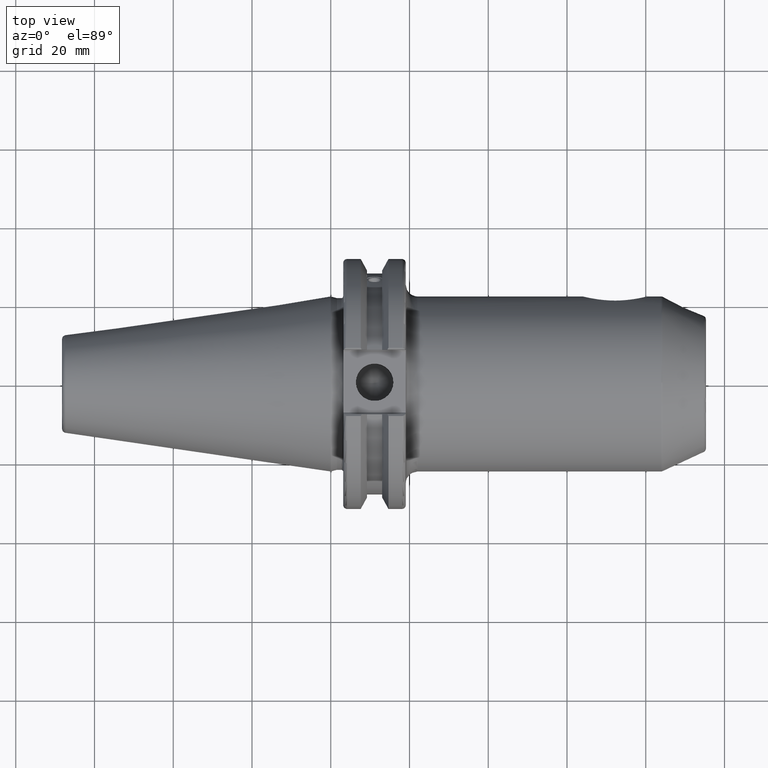
[diagram: clean part render]
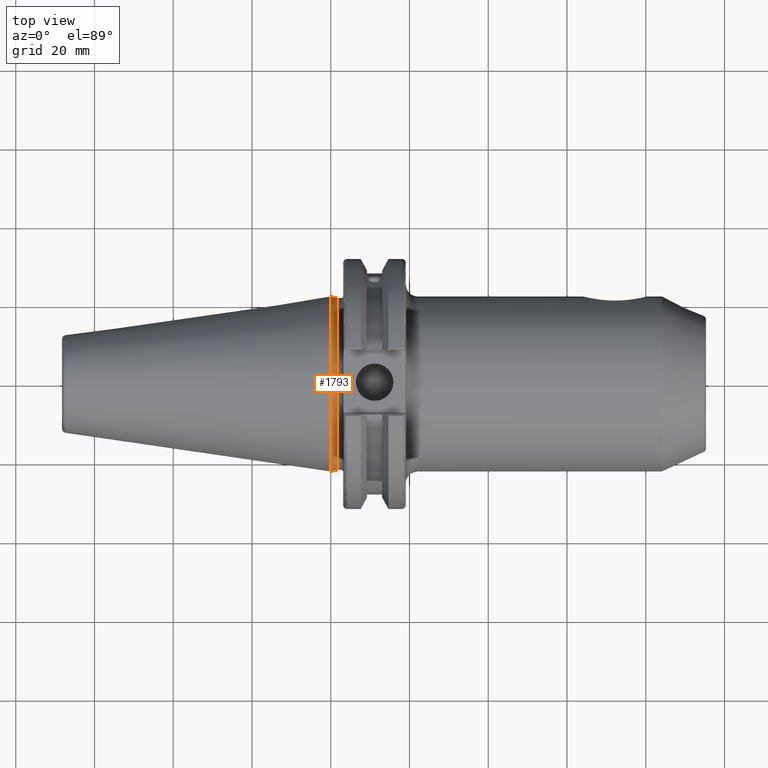
[diagram: same view with one face highlighted and labeled with its STEP entity id]
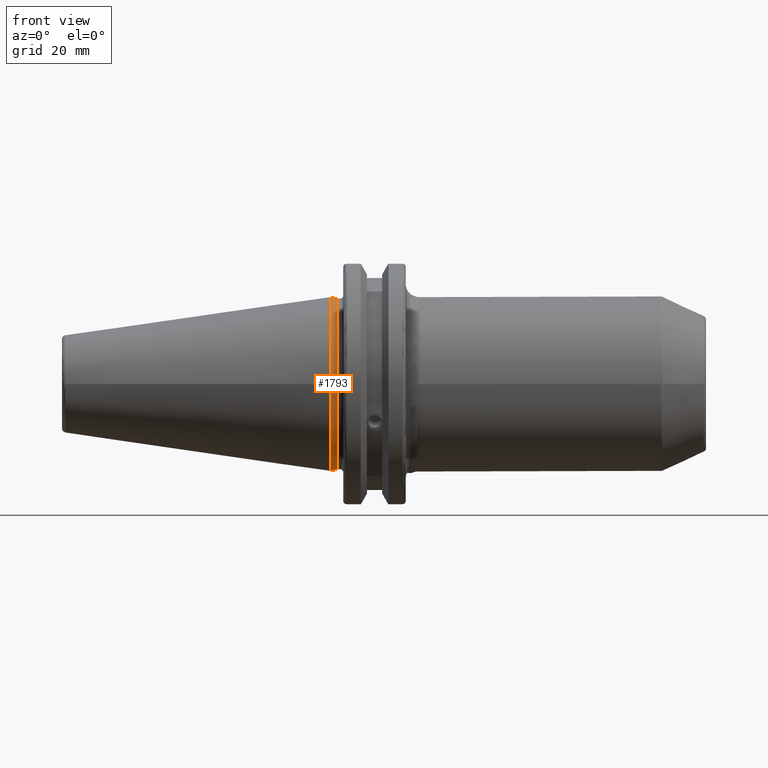
[diagram: same view with one face highlighted and labeled with its STEP entity id]
A machine part, top view. The second image highlights one B-rep face of the part: STEP entity #1793.
A second angle (front view) of the same face is appended — the face is thin or edge-on in the first view.
In plain terms, the highlighted conical surface has half-angle 15 deg.
Its self-contained STEP definition (entity closure, byte-faithful):
#69=CONICAL_SURFACE('',#2030,22.0125,0.261799387799148);
#214=FACE_OUTER_BOUND('',#321,.T.);
#321=EDGE_LOOP('',(#1661,#1662,#1663,#1664,#1665,#1666));
#454=LINE('',#3538,#544);
#544=VECTOR('',#2555,22.0125);
#624=CIRCLE('',#1958,21.8);
#625=CIRCLE('',#1959,21.8);
#639=CIRCLE('',#1989,22.225);
#640=CIRCLE('',#1990,22.225);
#801=VERTEX_POINT('',#3243);
#802=VERTEX_POINT('',#3245);
#835=VERTEX_POINT('',#3455);
#836=VERTEX_POINT('',#3456);
#1035=EDGE_CURVE('',#801,#802,#624,.T.);
#1036=EDGE_CURVE('',#802,#801,#625,.T.);
#1088=EDGE_CURVE('',#835,#836,#639,.T.);
#1089=EDGE_CURVE('',#836,#835,#640,.T.);
#1125=EDGE_CURVE('',#801,#836,#454,.T.);
#1661=ORIENTED_EDGE('',*,*,#1036,.F.);
#1662=ORIENTED_EDGE('',*,*,#1035,.F.);
#1663=ORIENTED_EDGE('',*,*,#1125,.T.);
#1664=ORIENTED_EDGE('',*,*,#1089,.T.);
#1665=ORIENTED_EDGE('',*,*,#1088,.T.);
#1666=ORIENTED_EDGE('',*,*,#1125,.F.);
#1793=ADVANCED_FACE('',(#214),#69,.T.);
#1958=AXIS2_PLACEMENT_3D('',#3246,#2374,#2375);
#1959=AXIS2_PLACEMENT_3D('',#3247,#2376,#2377);
#1989=AXIS2_PLACEMENT_3D('',#3457,#2452,#2453);
#1990=AXIS2_PLACEMENT_3D('',#3458,#2454,#2455);
#2030=AXIS2_PLACEMENT_3D('',#3537,#2553,#2554);
#2374=DIRECTION('center_axis',(1.,0.,0.));
#2375=DIRECTION('ref_axis',(0.,0.,-1.));
#2376=DIRECTION('center_axis',(1.,0.,0.));
#2377=DIRECTION('ref_axis',(0.,0.,-1.));
#2452=DIRECTION('center_axis',(1.,0.,0.));
#2453=DIRECTION('ref_axis',(0.,0.,-1.));
#2454=DIRECTION('center_axis',(1.,0.,0.));
#2455=DIRECTION('ref_axis',(0.,0.,-1.));
#2553=DIRECTION('center_axis',(-1.,0.,0.));
#2554=DIRECTION('ref_axis',(0.,1.,0.));
#2555=DIRECTION('',(-0.965925826289069,-0.258819045102519,-3.16961915143175E-17));
#3243=CARTESIAN_POINT('',(1.58612159321676,-21.8,-2.66973002214123E-15));
#3245=CARTESIAN_POINT('',(1.58612159321676,21.8,0.));
#3246=CARTESIAN_POINT('Origin',(1.58612159321676,0.,0.));
#3247=CARTESIAN_POINT('Origin',(1.58612159321676,0.,0.));
#3455=CARTESIAN_POINT('',(0.,22.225,0.));
#3456=CARTESIAN_POINT('',(0.,-22.225,-2.72177751110499E-15));
#3457=CARTESIAN_POINT('Origin',(0.,0.,0.));
#3458=CARTESIAN_POINT('Origin',(0.,0.,0.));
#3537=CARTESIAN_POINT('Origin',(0.793060796608382,0.,0.));
#3538=CARTESIAN_POINT('',(0.793060796608382,-22.0125,-2.69575376662311E-15));